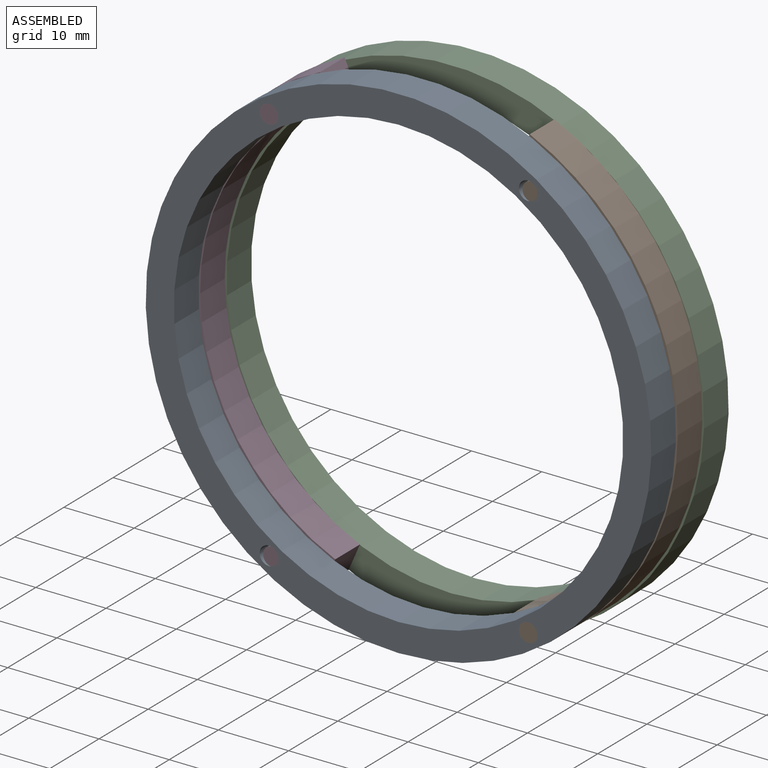
[diagram: assembled view]
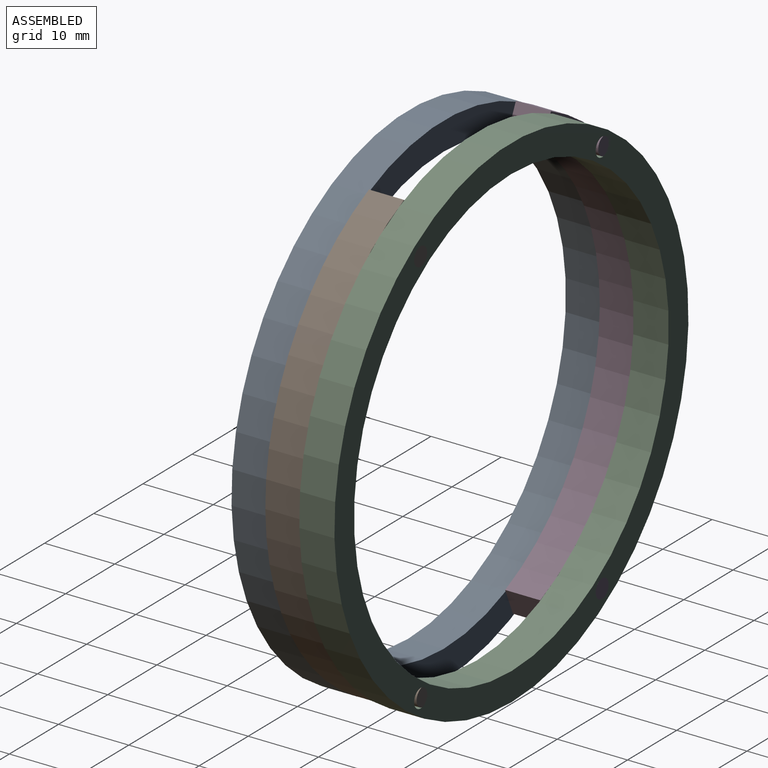
[diagram: assembled view, second angle]
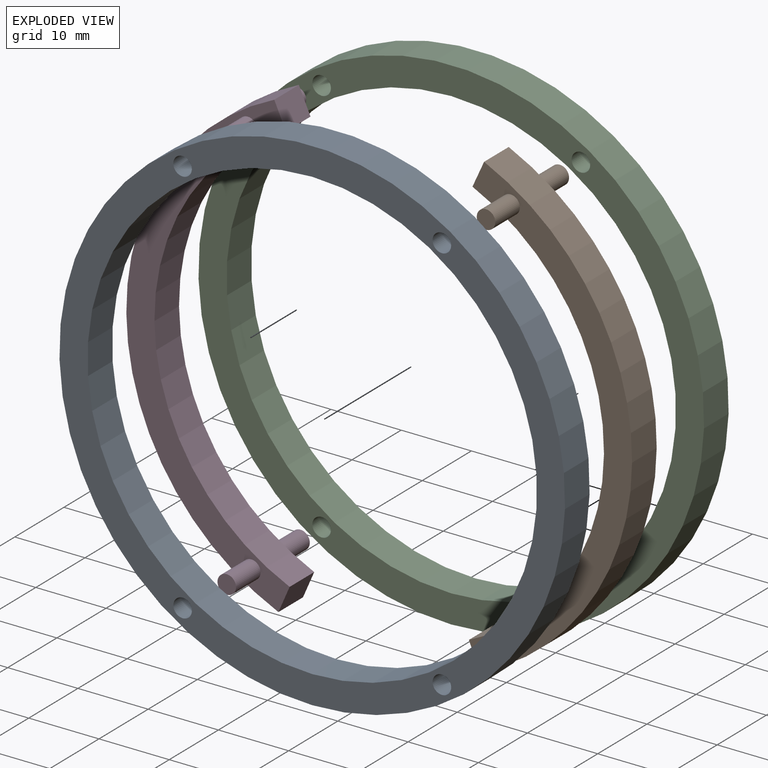
[diagram: exploded view]
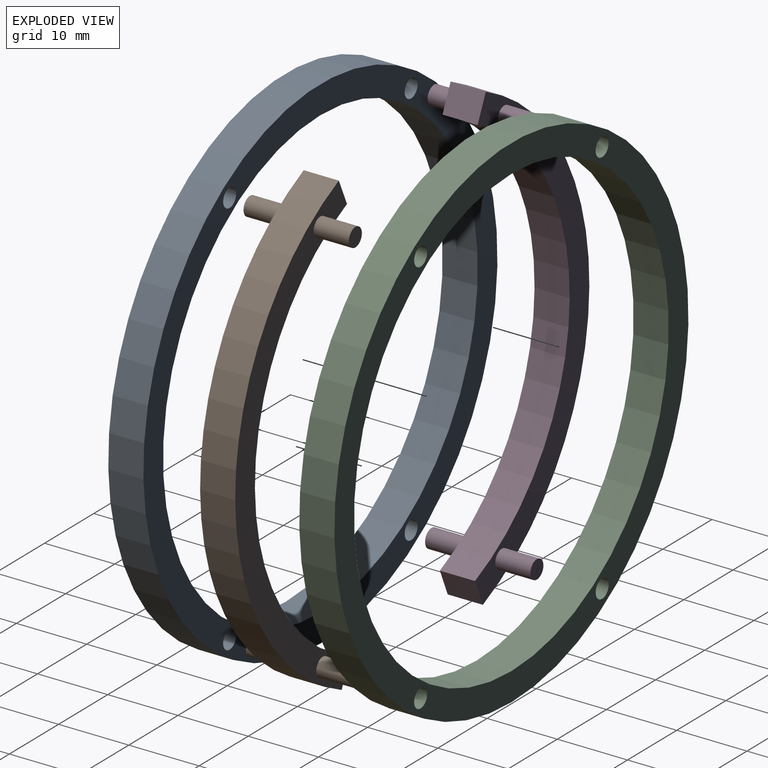
[diagram: exploded view, second angle]
ASSEMBLY  parts=4 mates=7
PART A: 8 faces, bbox 72x5x72 mm
  f0: cylinder r=1.32mm len=5mm, axis (0,1,0), area 41.5mm2, adj f6,f7
  f1: cylinder r=1.32mm len=5mm, axis (0,1,0), area 41.5mm2, adj f6,f7
  f2: cylinder r=1.32mm len=5mm, axis (0,1,0), area 41.5mm2, adj f6,f7
  f3: cylinder r=36mm len=72mm, axis (0,1,0), area 1131mm2, adj f6,f7
  f4: cylinder r=32mm len=64mm, axis (0,1,0), area 1005.3mm2, adj f6,f7
  f5: cylinder r=1.32mm len=5mm, axis (0,1,0), area 41.5mm2, adj f6,f7
  f6: plane 72x72mm, normal (0,-1,0), area 832.6mm2, adj f0,f1,f2,f3,f4,f5
  f7: plane 72x72mm, normal (0,1,0), area 832.6mm2, adj f0,f1,f2,f3,f4,f5
PART B: 14 faces, bbox 23x15x65.8 mm
  f0: cylinder r=36mm len=65.78mm, axis (0,1,0), area 414.7mm2, adj f1,f3,f4,f5
  f1: plane 5x3.65mm, normal (-0.91,0,0.41), area 20mm2, adj f0,f2,f4,f5
  f2: cylinder r=32mm len=58.47mm, axis (0,1,0), area 368.6mm2, adj f1,f3,f4,f5
  f3: plane 5x3.65mm, normal (-0.91,0,-0.41), area 20mm2, adj f0,f2,f4,f5
  f4: plane 65.78x22.98mm, normal (0,-1,0), area 302.4mm2, adj f0,f1,f2,f3,f8,f12
  f5: plane 65.78x22.98mm, normal (0,1,0), area 302.4mm2, adj f0,f1,f2,f3,f7,f11
  f6: plane 2.64x2.64mm, normal (0,1,0), area 5.5mm2, adj f7
  f7: cylinder r=1.32mm len=5mm, axis (0,1,0), area 41.5mm2, adj f5,f6
  f8: cylinder r=1.32mm len=5mm, axis (0,1,0), area 41.5mm2, adj f4,f9
  f9: plane 2.64x2.64mm, normal (0,-1,0), area 5.5mm2, adj f8
  f10: plane 2.64x2.64mm, normal (0,1,0), area 5.5mm2, adj f11
  f11: cylinder r=1.32mm len=5mm, axis (0,1,0), area 41.5mm2, adj f5,f10
  f12: cylinder r=1.32mm len=5mm, axis (0,1,0), area 41.5mm2, adj f4,f13
  f13: plane 2.64x2.64mm, normal (0,-1,0), area 5.5mm2, adj f12
PART C: same geometry as A
PART D: same geometry as B
PLACE A rot(axis=(0,-1,0),0deg) t=(-13.05,-18.31,-4.6)mm
PLACE B rot(axis=(0,1,0),0.5deg) t=(-12.79,-13.31,-4.44)mm
PLACE C t=(-12.54,-8.31,-4.6)mm fixed
PLACE D rot(axis=(0,1,0),179.5deg) t=(-12.79,-13.31,-4.44)mm
MATE cylindrical D.f11 <-> A.f1  axis (0,-1,0) through (-31.5,-23.31,23.81)mm
MATE cylindrical B.f7 <-> C.f5  axis (0,1,0) through (5.92,-8.31,23.82)mm
MATE cylindrical B.f11 <-> A.f0  axis (0,-1,0) through (5.41,-23.31,-33.02)mm
MATE planar C.f3 <-> D.f5  axis (0,-1,0) through (-12.54,-13.31,-4.6)mm
MATE cylindrical D.f7 <-> C.f2  axis (0,1,0) through (-31,-8.31,-33.02)mm
MATE planar D.f4 <-> A.f3  axis (0,-1,0) through (-40.1,-18.31,-4.68)mm
MATE planar C.f3 <-> B.f5  axis (0,-1,0) through (-12.54,-13.31,-4.6)mm
